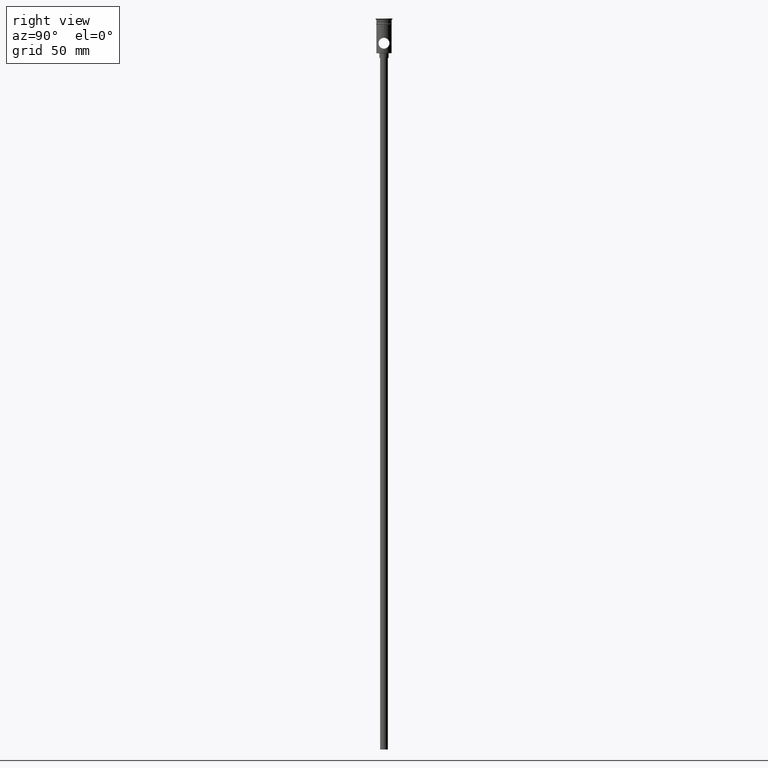
[diagram: clean part render]
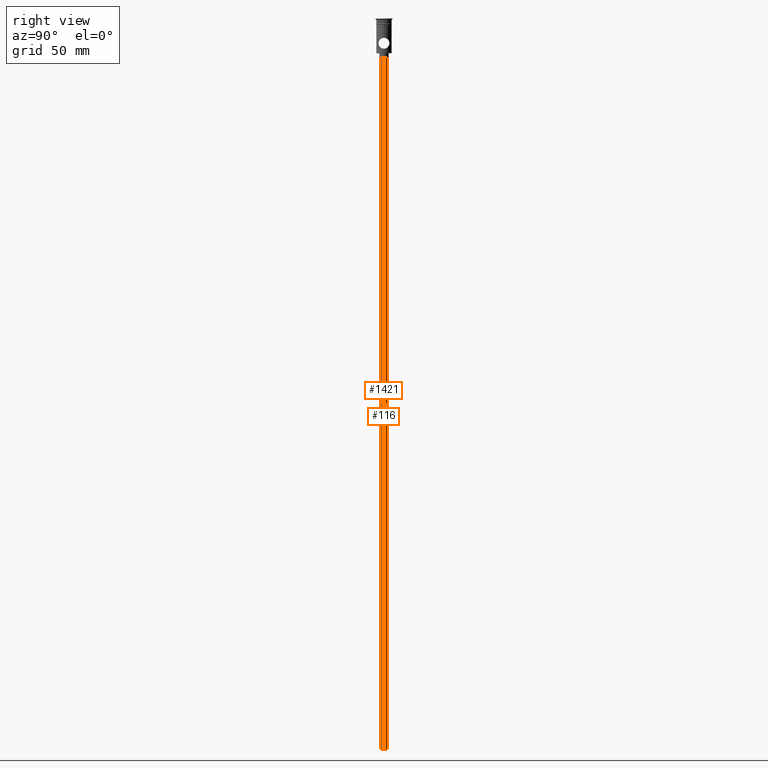
[diagram: same view with one multi-face feature highlighted, each face labeled with its STEP entity id]
A machine part, right view. The highlighted faces form ONE feature: a constant-radius fillet chain: 2 tangent blend faces with common blend radius 2.5 mm. The faces share edges in the B-rep.
Their STEP definitions:
[1] entity #116 (Cylinder):
#65 = DIRECTION ( 'NONE',  ( -1.000000000000000000, 0.000000000000000000, 0.000000000000000000 ) ) ;
#67 = DIRECTION ( 'NONE',  ( -0.000000000000000000, -0.000000000000000000, 1.000000000000000000 ) ) ;
#75 = CARTESIAN_POINT ( 'NONE',  ( 2.500000000000000000, 0.000000000000000000, -25.50000000000000000 ) ) ;
#77 = VECTOR ( 'NONE', #1444, 1000.000000000000000 ) ;
#91 = CARTESIAN_POINT ( 'NONE',  ( -2.500000000000000000, 3.061616997868383141E-16, -472.5000000000000568 ) ) ;
#109 = EDGE_CURVE ( 'NONE', #1393, #1128, #816, .T. ) ;
#116 = ADVANCED_FACE ( 'NONE', ( #160 ), #673, .T. ) ;
#160 = FACE_OUTER_BOUND ( 'NONE', #168, .T. ) ;
#168 = EDGE_LOOP ( 'NONE', ( #1396, #1135, #537, #1324 ) ) ;
#325 = EDGE_CURVE ( 'NONE', #329, #389, #1074, .T. ) ;
#329 = VERTEX_POINT ( 'NONE', #873 ) ;
#389 = VERTEX_POINT ( 'NONE', #75 ) ;
#417 = EDGE_CURVE ( 'NONE', #1393, #329, #1345, .T. ) ;
#421 = DIRECTION ( 'NONE',  ( 0.000000000000000000, 0.000000000000000000, -1.000000000000000000 ) ) ;
#537 = ORIENTED_EDGE ( 'NONE', *, *, #325, .T. ) ;
#673 = CYLINDRICAL_SURFACE ( 'NONE', #795, 2.500000000000000000 ) ;
#692 = CARTESIAN_POINT ( 'NONE',  ( -2.500000000000000000, 3.061616997868383141E-16, -472.5000000000000568 ) ) ;
#696 = AXIS2_PLACEMENT_3D ( 'NONE', #711, #1066, #1295 ) ;
#698 = VECTOR ( 'NONE', #776, 1000.000000000000000 ) ;
#711 = CARTESIAN_POINT ( 'NONE',  ( 0.000000000000000000, 0.000000000000000000, -472.5000000000000568 ) ) ;
#770 = AXIS2_PLACEMENT_3D ( 'NONE', #1182, #421, #65 ) ;
#771 = CARTESIAN_POINT ( 'NONE',  ( 2.500000000000000000, 0.000000000000000000, -472.5000000000000568 ) ) ;
#776 = DIRECTION ( 'NONE',  ( -0.000000000000000000, -0.000000000000000000, 1.000000000000000000 ) ) ;
#787 = LINE ( 'NONE', #997, #77 ) ;
#795 = AXIS2_PLACEMENT_3D ( 'NONE', #1207, #67, #990 ) ;
#816 = CIRCLE ( 'NONE', #696, 2.500000000000000000 ) ;
#873 = CARTESIAN_POINT ( 'NONE',  ( -2.500000000000000000, 3.061616997868383141E-16, -25.50000000000000000 ) ) ;
#920 = EDGE_CURVE ( 'NONE', #1128, #389, #787, .T. ) ;
#990 = DIRECTION ( 'NONE',  ( 1.000000000000000000, 0.000000000000000000, 0.000000000000000000 ) ) ;
#997 = CARTESIAN_POINT ( 'NONE',  ( 2.500000000000000000, 0.000000000000000000, -472.5000000000000568 ) ) ;
#1066 = DIRECTION ( 'NONE',  ( 0.000000000000000000, 0.000000000000000000, -1.000000000000000000 ) ) ;
#1074 = CIRCLE ( 'NONE', #770, 2.500000000000000000 ) ;
#1128 = VERTEX_POINT ( 'NONE', #771 ) ;
#1135 = ORIENTED_EDGE ( 'NONE', *, *, #417, .T. ) ;
#1182 = CARTESIAN_POINT ( 'NONE',  ( 0.000000000000000000, 0.000000000000000000, -25.50000000000000000 ) ) ;
#1207 = CARTESIAN_POINT ( 'NONE',  ( 0.000000000000000000, 0.000000000000000000, -472.5000000000000568 ) ) ;
#1295 = DIRECTION ( 'NONE',  ( -1.000000000000000000, 0.000000000000000000, 0.000000000000000000 ) ) ;
#1324 = ORIENTED_EDGE ( 'NONE', *, *, #920, .F. ) ;
#1345 = LINE ( 'NONE', #91, #698 ) ;
#1393 = VERTEX_POINT ( 'NONE', #692 ) ;
#1396 = ORIENTED_EDGE ( 'NONE', *, *, #109, .F. ) ;
#1444 = DIRECTION ( 'NONE',  ( -0.000000000000000000, -0.000000000000000000, 1.000000000000000000 ) ) ;
[2] entity #1421 (Cylinder):
#68 = EDGE_CURVE ( 'NONE', #389, #329, #74, .T. ) ;
#74 = CIRCLE ( 'NONE', #1004, 2.500000000000000000 ) ;
#75 = CARTESIAN_POINT ( 'NONE',  ( 2.500000000000000000, 0.000000000000000000, -25.50000000000000000 ) ) ;
#77 = VECTOR ( 'NONE', #1444, 1000.000000000000000 ) ;
#91 = CARTESIAN_POINT ( 'NONE',  ( -2.500000000000000000, 3.061616997868383141E-16, -472.5000000000000568 ) ) ;
#112 = DIRECTION ( 'NONE',  ( 0.000000000000000000, 0.000000000000000000, -1.000000000000000000 ) ) ;
#255 = FACE_OUTER_BOUND ( 'NONE', #1330, .T. ) ;
#277 = EDGE_CURVE ( 'NONE', #1128, #1393, #548, .T. ) ;
#284 = DIRECTION ( 'NONE',  ( 0.000000000000000000, 0.000000000000000000, -1.000000000000000000 ) ) ;
#298 = DIRECTION ( 'NONE',  ( 1.000000000000000000, 0.000000000000000000, 0.000000000000000000 ) ) ;
#313 = ORIENTED_EDGE ( 'NONE', *, *, #68, .T. ) ;
#329 = VERTEX_POINT ( 'NONE', #873 ) ;
#389 = VERTEX_POINT ( 'NONE', #75 ) ;
#417 = EDGE_CURVE ( 'NONE', #1393, #329, #1345, .T. ) ;
#483 = DIRECTION ( 'NONE',  ( -0.000000000000000000, -0.000000000000000000, 1.000000000000000000 ) ) ;
#539 = CARTESIAN_POINT ( 'NONE',  ( 0.000000000000000000, 0.000000000000000000, -472.5000000000000568 ) ) ;
#548 = CIRCLE ( 'NONE', #746, 2.500000000000000000 ) ;
#685 = DIRECTION ( 'NONE',  ( -1.000000000000000000, 0.000000000000000000, 0.000000000000000000 ) ) ;
#692 = CARTESIAN_POINT ( 'NONE',  ( -2.500000000000000000, 3.061616997868383141E-16, -472.5000000000000568 ) ) ;
#698 = VECTOR ( 'NONE', #776, 1000.000000000000000 ) ;
#708 = CYLINDRICAL_SURFACE ( 'NONE', #800, 2.500000000000000000 ) ;
#746 = AXIS2_PLACEMENT_3D ( 'NONE', #539, #284, #1093 ) ;
#771 = CARTESIAN_POINT ( 'NONE',  ( 2.500000000000000000, 0.000000000000000000, -472.5000000000000568 ) ) ;
#776 = DIRECTION ( 'NONE',  ( -0.000000000000000000, -0.000000000000000000, 1.000000000000000000 ) ) ;
#787 = LINE ( 'NONE', #997, #77 ) ;
#800 = AXIS2_PLACEMENT_3D ( 'NONE', #1156, #483, #298 ) ;
#865 = ORIENTED_EDGE ( 'NONE', *, *, #417, .F. ) ;
#873 = CARTESIAN_POINT ( 'NONE',  ( -2.500000000000000000, 3.061616997868383141E-16, -25.50000000000000000 ) ) ;
#920 = EDGE_CURVE ( 'NONE', #1128, #389, #787, .T. ) ;
#954 = ORIENTED_EDGE ( 'NONE', *, *, #920, .T. ) ;
#997 = CARTESIAN_POINT ( 'NONE',  ( 2.500000000000000000, 0.000000000000000000, -472.5000000000000568 ) ) ;
#1004 = AXIS2_PLACEMENT_3D ( 'NONE', #1460, #112, #685 ) ;
#1045 = ORIENTED_EDGE ( 'NONE', *, *, #277, .F. ) ;
#1093 = DIRECTION ( 'NONE',  ( -1.000000000000000000, 0.000000000000000000, 0.000000000000000000 ) ) ;
#1128 = VERTEX_POINT ( 'NONE', #771 ) ;
#1156 = CARTESIAN_POINT ( 'NONE',  ( 0.000000000000000000, 0.000000000000000000, -472.5000000000000568 ) ) ;
#1330 = EDGE_LOOP ( 'NONE', ( #865, #1045, #954, #313 ) ) ;
#1345 = LINE ( 'NONE', #91, #698 ) ;
#1393 = VERTEX_POINT ( 'NONE', #692 ) ;
#1421 = ADVANCED_FACE ( 'NONE', ( #255 ), #708, .T. ) ;
#1444 = DIRECTION ( 'NONE',  ( -0.000000000000000000, -0.000000000000000000, 1.000000000000000000 ) ) ;
#1460 = CARTESIAN_POINT ( 'NONE',  ( 0.000000000000000000, 0.000000000000000000, -25.50000000000000000 ) ) ;